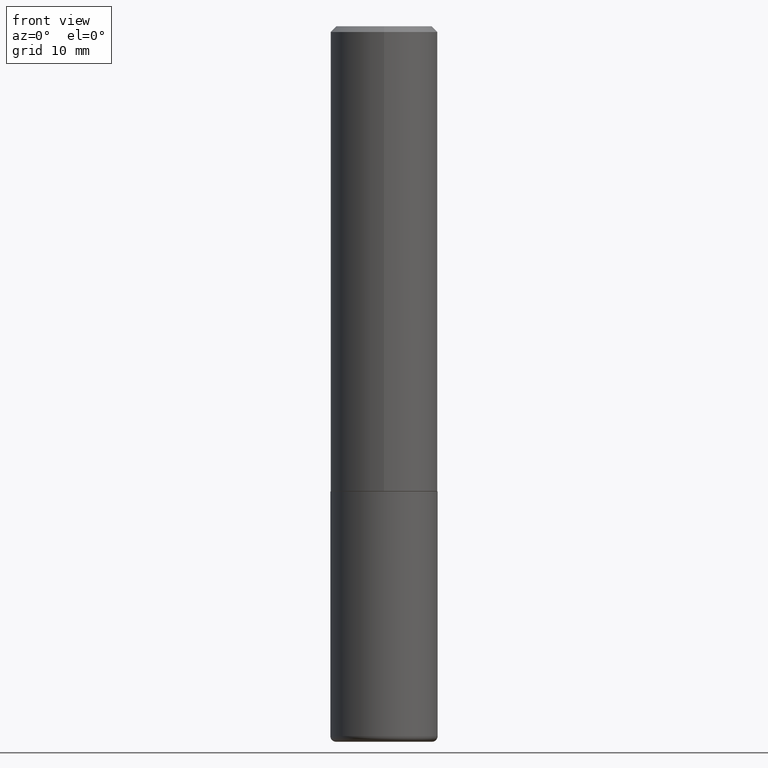
[diagram: clean part render]
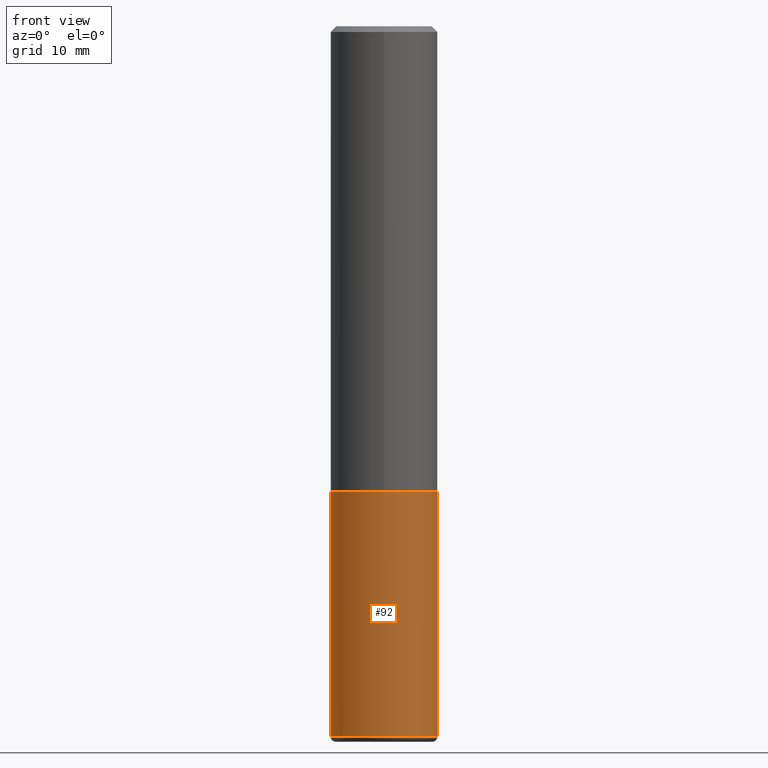
[diagram: same view with one face highlighted and labeled with its STEP entity id]
A machine part, front view. The second image highlights one B-rep face of the part: STEP entity #92.
In plain terms, the highlighted cylindrical surface (partial cylindrical patch) has radius 4.7625 mm, axis along (-0, 0, 1).
Its self-contained STEP definition (entity closure, byte-faithful):
#11 = DIRECTION ( 'NONE',  ( -2.445468806185136877E-29, 3.491481338843145188E-15, 1.000000000000000000 ) ) ;
#41 = CARTESIAN_POINT ( 'NONE',  ( 6.064762639339139522E-29, -8.658873720331001644E-15, -2.480000000000000426 ) ) ;
#45 = ORIENTED_EDGE ( 'NONE', *, *, #392, .T. ) ;
#47 = DIRECTION ( 'NONE',  ( -2.445468806185136597E-29, 3.491481338843145583E-15, 1.000000000000000000 ) ) ;
#53 = CARTESIAN_POINT ( 'NONE',  ( 0.1875000000000000278, -6.982962677686288010E-15, -1.625000000000000222 ) ) ;
#63 = CIRCLE ( 'NONE', #271, 0.1875000000000000278 ) ;
#67 = VERTEX_POINT ( 'NONE', #53 ) ;
#73 = EDGE_CURVE ( 'NONE', #321, #265, #373, .T. ) ;
#92 = ADVANCED_FACE ( 'NONE', ( #211 ), #112, .T. ) ;
#103 = DIRECTION ( 'NONE',  ( -2.445468806185136597E-29, 3.491481338843145583E-15, 1.000000000000000000 ) ) ;
#108 = VECTOR ( 'NONE', #358, 39.37007874015748143 ) ;
#112 = CYLINDRICAL_SURFACE ( 'NONE', #413, 0.1875000000000000278 ) ;
#129 = CARTESIAN_POINT ( 'NONE',  ( 0.1874999999999999722, -9.968179222397176653E-15, -2.480000000000000426 ) ) ;
#135 = AXIS2_PLACEMENT_3D ( 'NONE', #228, #198, #200 ) ;
#143 = EDGE_LOOP ( 'NONE', ( #333, #45, #344, #293 ) ) ;
#157 = LINE ( 'NONE', #380, #108 ) ;
#165 = VERTEX_POINT ( 'NONE', #129 ) ;
#176 = DIRECTION ( 'NONE',  ( 1.000000000000000000, -6.982962677686265922E-15, 4.876176775795935793E-29 ) ) ;
#183 = EDGE_CURVE ( 'NONE', #165, #67, #157, .T. ) ;
#198 = DIRECTION ( 'NONE',  ( -2.445468806185136597E-29, 3.491481338843145583E-15, 1.000000000000000000 ) ) ;
#200 = DIRECTION ( 'NONE',  ( 1.000000000000000000, -6.982962677686266711E-15, 0.000000000000000000 ) ) ;
#211 = FACE_OUTER_BOUND ( 'NONE', #143, .T. ) ;
#216 = CIRCLE ( 'NONE', #135, 0.1875000000000000278 ) ;
#228 = CARTESIAN_POINT ( 'NONE',  ( 3.973886810050848091E-29, -5.673657175620113002E-15, -1.625000000000000222 ) ) ;
#241 = DIRECTION ( 'NONE',  ( 1.000000000000000000, -6.982962677686261189E-15, 0.000000000000000000 ) ) ;
#265 = VERTEX_POINT ( 'NONE', #357 ) ;
#271 = AXIS2_PLACEMENT_3D ( 'NONE', #41, #103, #241 ) ;
#281 = VECTOR ( 'NONE', #11, 39.37007874015748143 ) ;
#283 = CARTESIAN_POINT ( 'NONE',  ( -0.1875000000000000278, 1.332267629550188046E-15, -9.223003294227947991E-30 ) ) ;
#293 = ORIENTED_EDGE ( 'NONE', *, *, #359, .F. ) ;
#320 = CARTESIAN_POINT ( 'NONE',  ( -0.1874999999999999722, -7.326606090780813796E-15, -2.480000000000000426 ) ) ;
#321 = VERTEX_POINT ( 'NONE', #320 ) ;
#333 = ORIENTED_EDGE ( 'NONE', *, *, #73, .F. ) ;
#340 = CARTESIAN_POINT ( 'NONE',  ( 0.000000000000000000, 0.000000000000000000, 0.000000000000000000 ) ) ;
#344 = ORIENTED_EDGE ( 'NONE', *, *, #183, .T. ) ;
#357 = CARTESIAN_POINT ( 'NONE',  ( -0.1875000000000000278, -5.833997818425370658E-15, -1.625000000000000222 ) ) ;
#358 = DIRECTION ( 'NONE',  ( -2.445468806185136877E-29, 3.491481338843145188E-15, 1.000000000000000000 ) ) ;
#359 = EDGE_CURVE ( 'NONE', #265, #67, #216, .T. ) ;
#373 = LINE ( 'NONE', #283, #281 ) ;
#380 = CARTESIAN_POINT ( 'NONE',  ( 0.1875000000000000278, -1.309305502066175008E-15, 9.142831454617381013E-30 ) ) ;
#392 = EDGE_CURVE ( 'NONE', #321, #165, #63, .T. ) ;
#413 = AXIS2_PLACEMENT_3D ( 'NONE', #340, #47, #176 ) ;